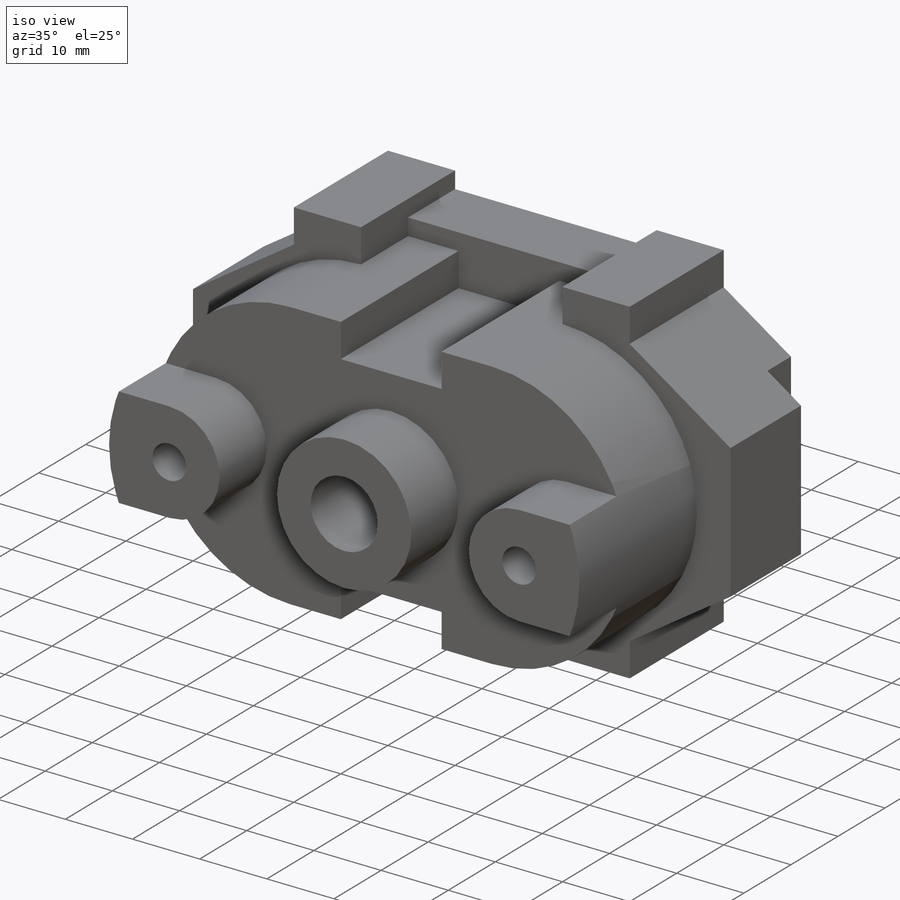
[diagram: iso view]
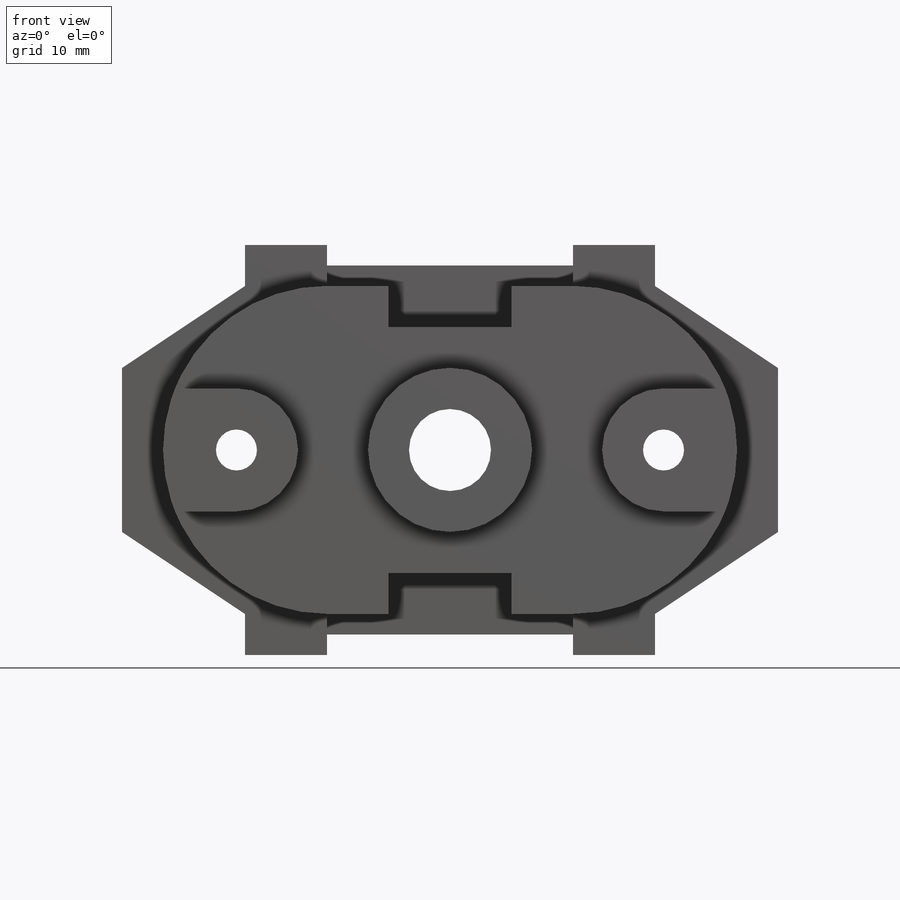
[diagram: front view]
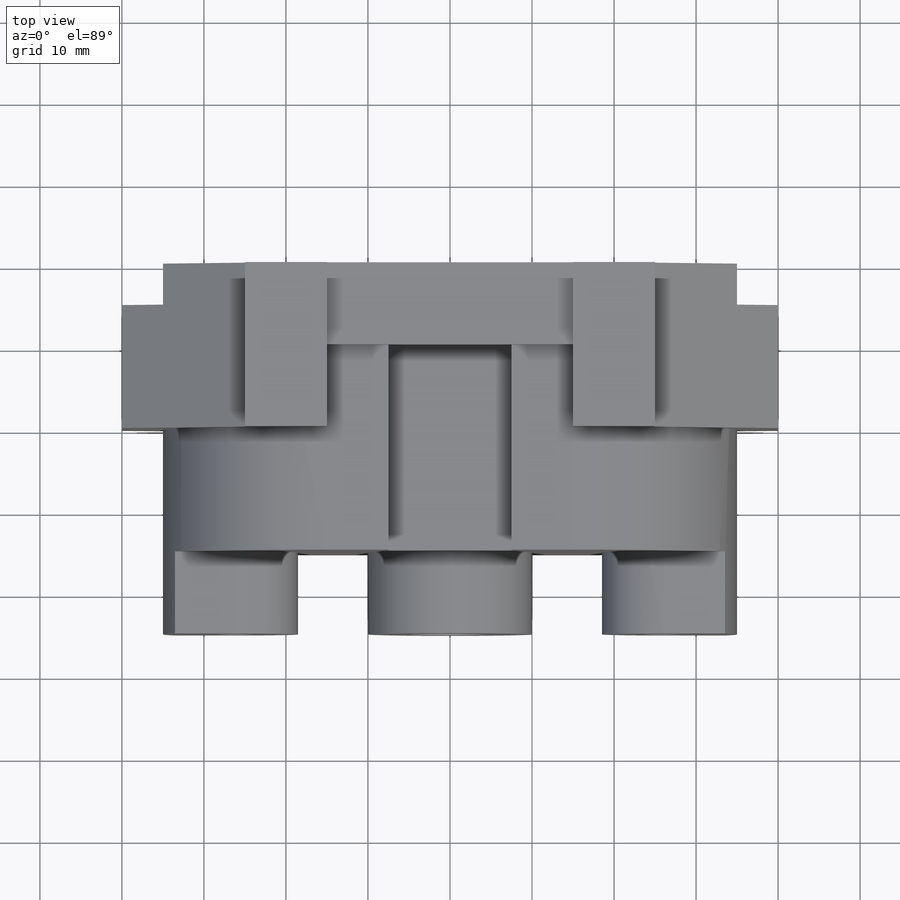
[diagram: top view]
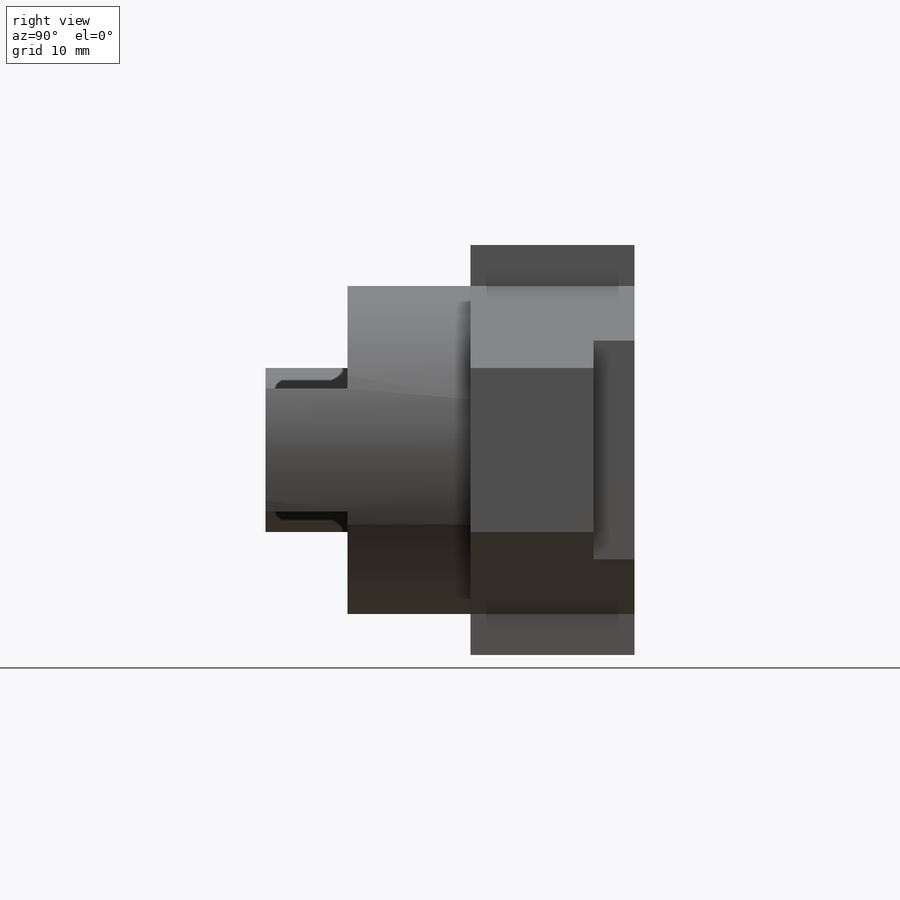
[diagram: right view]
SOLIDWORKS PART (.sldprt)
format: sldprt  version: not decoded by parser v0  size: 372,736 bytes
history: native  units: mm
features: sketch x10, extrude x5, cut_extrude x5, material x1 (+13 scaffold rows collapsed)
feature tree (34):
  scaffold x13  (default folders/planes/origin — collapsed)
  material  "Material <not specified>"
  sketch  "Sketch1"  dims[c1.D1=10.0mm c1.D2=10.0mm c1.D3=5.0mm c1.D4=5.0mm c1.D5=5.0mm c1.D6=5.0mm c1.D7=20.0mm c1.D8=20.0mm c1.D9=5.0mm c1.D10=10.0mm c1.D11=5.0mm c1.D12=30.0mm c1.D13=5.0mm c1.D14=~2.511573mm c2.D13=5.0mm c2.D14=10.0mm c2.D15=15.0mm c2.D16=10.0mm c3.D14=~9.85275mm c3.D13=15.0mm c4.D14=10.0mm c4.D15=5.0mm c4.D16=5.0mm c4.D17=10.0mm c4.D18=15.0mm c4.D19=10.0mm c4.D20=15.0mm c4.D21=10.0mm c4.D22=15.0mm]
  extrude  "Boss-Extrude1"  Depth=20mm
  sketch  "Sketch2"  dims[D1=27.5mm D2=5.0mm D3=3.75mm D4=3.75mm]
  cut_extrude  "Cut-Extrude2"  Depth=5mm
  sketch  "Sketch3"  dims[D1=5.0mm D2=27.5mm D3=3.75mm]
  cut_extrude  "Cut-Extrude3"  Depth=5mm
  sketch  "Sketch4"  dims[c1.D1=20.0mm c1.D2=20.0mm c2.D1=~31.033617mm c2.D2=2.5mm]
  extrude  "Boss-Extrude2"  Depth=15mm
  sketch  "Sketch5"  dims[D1=30.0mm]
  extrude  "Boss-Extrude3"  Depth=10mm
  sketch  "Sketch6"  dims[D1=7.5mm D2=7.5mm D3=5.0mm D4=7.5mm D5=7.5mm D6=5.0mm]
  cut_extrude  "Cut-Extrude4"  Depth=25mm
  sketch  "Sketch7"  dims[D1=20.0mm D2=15.0mm]
  extrude  "Boss-Extrude4"  Depth=10mm
  sketch  "Sketch8"  dims[D1=10.0mm]
  cut_extrude  "Cut-Extrude5"  Depth=310mm
  sketch  "Sketch10"  dims[c1.D1=20.0mm c1.D2=20.0mm c1.D3=7.5mm c1.D4=20.0mm c1.D5=7.5mm c2.D1=7.5mm c2.D6=7.5mm]
  extrude  "Boss-Extrude5"  Depth=10mm
  sketch  "Sketch11"  dims[D1=5.0mm D2=5.0mm]
  cut_extrude  "Cut-Extrude6"  Depth=300mm
decode coverage: 20 of 20 modeling features carry decoded parameters
note: ~ marks probable driven/reference dimensions
note: suppression state not decoded; provenance and decode notes live in map.json
